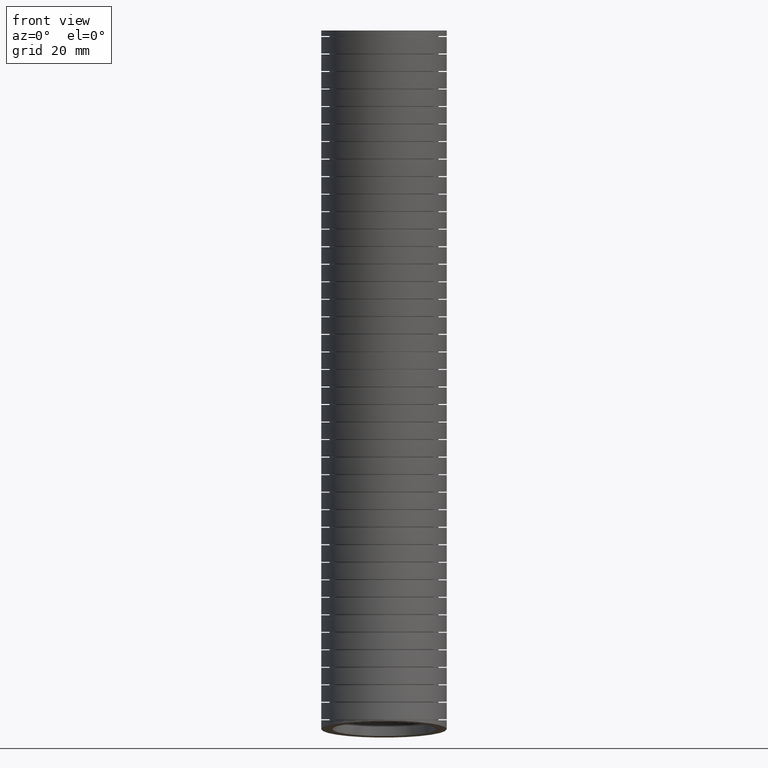
[diagram: clean part render]
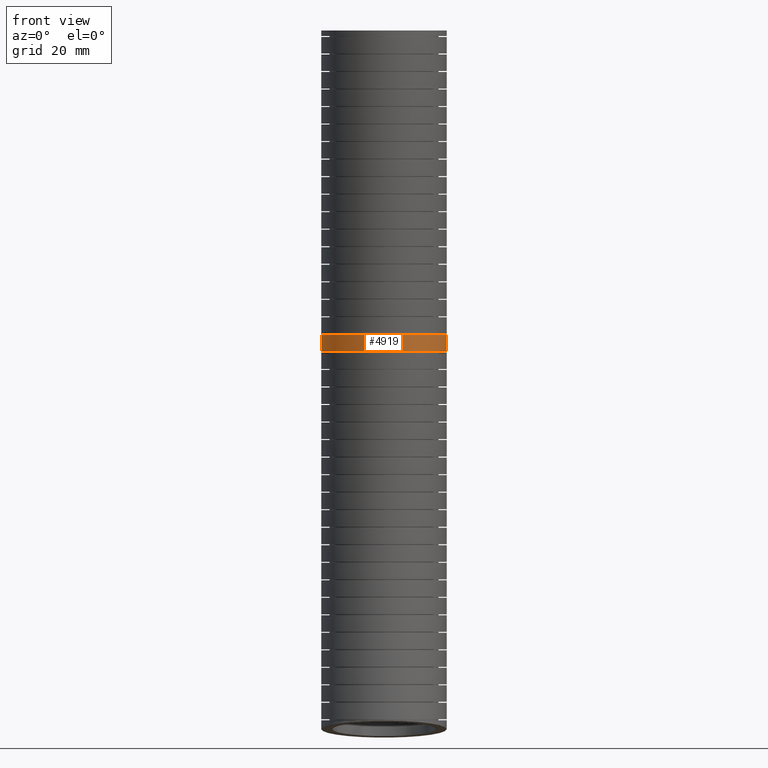
[diagram: same view with one face highlighted and labeled with its STEP entity id]
A machine part, front view. The second image highlights one B-rep face of the part: STEP entity #4919.
In plain terms, the highlighted face is a freeform B-spline surface patch.
Its self-contained STEP definition (entity closure, byte-faithful):
#4882 = VERTEX_POINT ( 'NONE', #9510 ) ;
#4887 = EDGE_CURVE ( 'NONE', #4922, #4882, #9572, .T. ) ;
#4888 = ORIENTED_EDGE ( 'NONE', *, *, #4887, .T. ) ;
#4908 = ORIENTED_EDGE ( 'NONE', *, *, #4910, .T. ) ;
#4910 = EDGE_CURVE ( 'NONE', #4911, #4915, #9700, .T. ) ;
#4911 = VERTEX_POINT ( 'NONE', #9701 ) ;
#4912 = ORIENTED_EDGE ( 'NONE', *, *, #4921, .T. ) ;
#4915 = VERTEX_POINT ( 'NONE', #9774 ) ;
#4916 = EDGE_LOOP ( 'NONE', ( #4908, #4912, #4888, #4967 ) ) ;
#4919 = ADVANCED_FACE ( 'NONE', ( #9772 ), #9816, .T. ) ;
#4921 = EDGE_CURVE ( 'NONE', #4915, #4922, #9814, .T. ) ;
#4922 = VERTEX_POINT ( 'NONE', #9815 ) ;
#4965 = EDGE_CURVE ( 'NONE', #4911, #4882, #10279, .T. ) ;
#4967 = ORIENTED_EDGE ( 'NONE', *, *, #4965, .F. ) ;
#9510 = CARTESIAN_POINT ( 'NONE',  ( 0.6799999999999998300, 0.1191299897984496500, -3.477878285617257000 ) ) ;
#9559 = CARTESIAN_POINT ( 'NONE',  ( -0.4963338145678234400, -0.3459315530059642300, -3.477878285809098600 ) ) ;
#9560 = CARTESIAN_POINT ( 'NONE',  ( -0.5114858365344048300, -0.3292349888419086600, -3.477878285809101300 ) ) ;
#9561 = CARTESIAN_POINT ( 'NONE',  ( -0.5397883289564231500, -0.2947716171642885100, -3.477878285809101700 ) ) ;
#9562 = CARTESIAN_POINT ( 'NONE',  ( -0.5530095349699719600, -0.2769476856164449500, -3.477878285809100400 ) ) ;
#9563 = CARTESIAN_POINT ( 'NONE',  ( -0.5899407589212781700, -0.2217359138415820600, -3.477878285809099100 ) ) ;
#9564 = CARTESIAN_POINT ( 'NONE',  ( -0.6109746632921322400, -0.1825545100900795300, -3.477878285809097700 ) ) ;
#9565 = CARTESIAN_POINT ( 'NONE',  ( -0.6453575859737621400, -0.09966305026945675200, -3.477878285809099100 ) ) ;
#9566 = CARTESIAN_POINT ( 'NONE',  ( -0.6582048764524689500, -0.05720136548537443200, -3.477878285809103500 ) ) ;
#9567 = CARTESIAN_POINT ( 'NONE',  ( -0.6712054320268197000, 0.007957591872620309300, -3.477878285809103500 ) ) ;
#9568 = CARTESIAN_POINT ( 'NONE',  ( -0.6744861733473044300, 0.02992345336393708100, -3.477878285809098600 ) ) ;
#9569 = CARTESIAN_POINT ( 'NONE',  ( -0.6788904760620648700, 0.07435966788919304300, -3.477878285809098600 ) ) ;
#9570 = CARTESIAN_POINT ( 'NONE',  ( -0.6799999999999997200, 0.09686540492076140000, -3.477878285809100000 ) ) ;
#9571 = CARTESIAN_POINT ( 'NONE',  ( -0.6799999999999998300, 0.1191299898037272800, -3.477878285809099100 ) ) ;
#9572 = B_SPLINE_CURVE_WITH_KNOTS ( 'NONE', 3,
 ( #9571, #9570, #9569, #9568, #9567, #9566, #9565, #9564, #9563, #9562, #9561, #9560, #9559, #9641, #9640, #9639, #9638, #9637, #9636, #9635, #9634, #9633, #9632, #9631, #9630, #9629, #9628, #9627, #9626, #9625, #9624, #9623, #9622, #9621, #9620, #9619, #9618, #9617, #9616, #9615, #9614, #9613, #9612, #9611, #9610, #9609, #9608, #9607, #9606, #9605, #9604 ),
 .UNSPECIFIED., .F., .F.,
 ( 4, 2, 2, 2, 2, 2, 2, 2, 2, 2, 2, 2, 1, 2, 2, 2, 2, 2, 2, 2, 2, 2, 2, 2, 2, 4 ),
 ( 0.05456167777848347500, 0.05626680181274124100, 0.05797192584699900600, 0.06138217391551453700, 0.06479242198403006900, 0.06649754601828783400, 0.06820267005254561400, 0.07161291812106114500, 0.07331804215531891000, 0.07502316618957667600, 0.07843341425809222100, 0.08013853829234998700, 0.08184366232660775200, 0.08354878636086551800, 0.08525391039512328400, 0.08866415846363881500, 0.09036928249789659400, 0.09207440653215434600, 0.09548465460066989100, 0.09718977863492765700, 0.09889490266918543600, 0.1023051507377009700, 0.1040102747719587300, 0.1057153988062165000, 0.1074205228404742600, 0.1091256468747320400 ),
 .UNSPECIFIED. ) ;
#9604 = CARTESIAN_POINT ( 'NONE',  ( 0.6799999999999998300, 0.1191299897984496500, -3.477878285617257000 ) ) ;
#9605 = CARTESIAN_POINT ( 'NONE',  ( 0.6799999999999998300, 0.09667545948014488700, -3.477878285617256100 ) ) ;
#9606 = CARTESIAN_POINT ( 'NONE',  ( 0.6788788304336282900, 0.07420682008083424900, -3.477878285809101300 ) ) ;
#9607 = CARTESIAN_POINT ( 'NONE',  ( 0.6744767848095871700, 0.02986425117740585900, -3.477878285809101700 ) ) ;
#9608 = CARTESIAN_POINT ( 'NONE',  ( 0.6711998264914975600, 0.007925658253330256400, -3.477878285809100000 ) ) ;
#9609 = CARTESIAN_POINT ( 'NONE',  ( 0.6625349776089491900, -0.03549499832668374200, -3.477878285809098600 ) ) ;
#9610 = CARTESIAN_POINT ( 'NONE',  ( 0.6571470381138216900, -0.05697705140043340900, -3.477878285809098200 ) ) ;
#9611 = CARTESIAN_POINT ( 'NONE',  ( 0.6442397730812501300, -0.09948020475719802900, -3.477878285809098600 ) ) ;
#9612 = CARTESIAN_POINT ( 'NONE',  ( 0.6366919140477044200, -0.1205693400066130400, -3.477878285809099100 ) ) ;
#9613 = CARTESIAN_POINT ( 'NONE',  ( 0.6109160432241367300, -0.1826660451790148600, -3.477878285809099100 ) ) ;
#9614 = CARTESIAN_POINT ( 'NONE',  ( 0.5899416808394328800, -0.2217370747985903100, -3.477878285809100900 ) ) ;
#9615 = CARTESIAN_POINT ( 'NONE',  ( 0.5529910106662514500, -0.2769741087073891400, -3.477878285809100000 ) ) ;
#9616 = CARTESIAN_POINT ( 'NONE',  ( 0.5397525657062194300, -0.2948207551612183600, -3.477878285809101300 ) ) ;
#9617 = CARTESIAN_POINT ( 'NONE',  ( 0.5113842930908190100, -0.3293530193006848400, -3.477878285809101700 ) ) ;
#9618 = CARTESIAN_POINT ( 'NONE',  ( 0.4962487115867144100, -0.3460203044351883300, -3.477878285809098600 ) ) ;
#9619 = CARTESIAN_POINT ( 'NONE',  ( 0.4490012785333313800, -0.3931725666702227700, -3.477878285809100000 ) ) ;
#9620 = CARTESIAN_POINT ( 'NONE',  ( 0.4147583602260312400, -0.4212319236971989700, -3.477878285809101300 ) ) ;
#9621 = CARTESIAN_POINT ( 'NONE',  ( 0.3592879371714460800, -0.4582711364563419300, -3.477878285809100900 ) ) ;
#9622 = CARTESIAN_POINT ( 'NONE',  ( 0.3400047788441976100, -0.4698230696181547900, -3.477878285809099100 ) ) ;
#9623 = CARTESIAN_POINT ( 'NONE',  ( 0.3005322376470450600, -0.4908843502558856200, -3.477878285809098200 ) ) ;
#9624 = CARTESIAN_POINT ( 'NONE',  ( 0.2804195230948592900, -0.5003680987063545700, -3.477878285809099100 ) ) ;
#9625 = CARTESIAN_POINT ( 'NONE',  ( 0.2189837643920015700, -0.5257668730176872100, -3.477878285809099100 ) ) ;
#9626 = CARTESIAN_POINT ( 'NONE',  ( 0.1765736199935092600, -0.5386586695275050700, -3.477878285809098600 ) ) ;
#9627 = CARTESIAN_POINT ( 'NONE',  ( 0.1107127924810620000, -0.5517513129807368700, -3.477878285809098600 ) ) ;
#9628 = CARTESIAN_POINT ( 'NONE',  ( 0.08849830628670427000, -0.5550320407809694600, -3.477878285809104000 ) ) ;
#9629 = CARTESIAN_POINT ( 'NONE',  ( 0.04425971996192324500, -0.5593683815609815600, -3.477878285809104000 ) ) ;
#9630 = CARTESIAN_POINT ( 'NONE',  ( 4.062277254108542100E-006, -0.5615233088113994500, -3.477878285809095500 ) ) ;
#9631 = CARTESIAN_POINT ( 'NONE',  ( -0.04428532783641572800, -0.5593678368030055000, -3.477878285809100400 ) ) ;
#9632 = CARTESIAN_POINT ( 'NONE',  ( -0.08859186797689507000, -0.5550208990441254400, -3.477878285809101300 ) ) ;
#9633 = CARTESIAN_POINT ( 'NONE',  ( -0.1108760527841262900, -0.5517227160763815700, -3.477878285809101300 ) ) ;
#9634 = CARTESIAN_POINT ( 'NONE',  ( -0.1765871780542960800, -0.5386482281952808000, -3.477878285809100400 ) ) ;
#9635 = CARTESIAN_POINT ( 'NONE',  ( -0.2189729280898020400, -0.5257732560558184800, -3.477878285809099100 ) ) ;
#9636 = CARTESIAN_POINT ( 'NONE',  ( -0.2804623383373964800, -0.5003494456116166500, -3.477878285809098600 ) ) ;
#9637 = CARTESIAN_POINT ( 'NONE',  ( -0.3006081313325404400, -0.4908490446890108600, -3.477878285809099100 ) ) ;
#9638 = CARTESIAN_POINT ( 'NONE',  ( -0.3401746292280576300, -0.4697272217135072300, -3.477878285809098600 ) ) ;
#9639 = CARTESIAN_POINT ( 'NONE',  ( -0.3593571120723541000, -0.4582269793323423000, -3.477878285809100000 ) ) ;
#9640 = CARTESIAN_POINT ( 'NONE',  ( -0.4147493505028767600, -0.4212338666890870200, -3.477878285809100000 ) ) ;
#9641 = CARTESIAN_POINT ( 'NONE',  ( -0.4490058267639624500, -0.3931756462278336300, -3.477878285809098600 ) ) ;
#9688 = CARTESIAN_POINT ( 'NONE',  ( 0.5113418354489541700, -0.3322027865472778100, -3.297900672311556500 ) ) ;
#9689 = CARTESIAN_POINT ( 'NONE',  ( 0.5397921765292567100, -0.2975676535183449100, -3.297900672311556500 ) ) ;
#9690 = CARTESIAN_POINT ( 'NONE',  ( 0.5531403683728208800, -0.2795626397485755400, -3.297900672311556000 ) ) ;
#9691 = CARTESIAN_POINT ( 'NONE',  ( 0.5901703731115571800, -0.2241461193176084400, -3.297900672311556000 ) ) ;
#9692 = CARTESIAN_POINT ( 'NONE',  ( 0.6110689390331069900, -0.1851024707693244000, -3.297900672311554300 ) ) ;
#9693 = CARTESIAN_POINT ( 'NONE',  ( 0.6366831112638188200, -0.1233594936227989900, -3.297900672311553800 ) ) ;
#9694 = CARTESIAN_POINT ( 'NONE',  ( 0.6442856974757661400, -0.1021327396265062200, -3.297900672311556500 ) ) ;
#9695 = CARTESIAN_POINT ( 'NONE',  ( 0.6572387722583247200, -0.05942127569925458700, -3.297900672311555600 ) ) ;
#9696 = CARTESIAN_POINT ( 'NONE',  ( 0.6626254156393768200, -0.03787991386457537100, -3.297900672311553800 ) ) ;
#9697 = CARTESIAN_POINT ( 'NONE',  ( 0.6755886403332017600, 0.02728863193999314000, -3.297900672311553400 ) ) ;
#9698 = CARTESIAN_POINT ( 'NONE',  ( 0.6799999999999999400, 0.07145491391435290800, -3.297900672119741500 ) ) ;
#9699 = CARTESIAN_POINT ( 'NONE',  ( 0.6799999999999998300, 0.1163725351184301800, -3.297900672119741000 ) ) ;
#9700 = B_SPLINE_CURVE_WITH_KNOTS ( 'NONE', 3,
 ( #9699, #9698, #9697, #9696, #9695, #9694, #9693, #9692, #9691, #9690, #9689, #9688, #9760, #9759, #9758, #9757, #9756, #9755, #9754, #9753, #9752, #9751, #9750, #9749, #9748, #9747, #9746, #9745, #9744, #9743, #9742, #9741, #9740, #9739, #9738, #9737, #9736, #9735, #9734, #9733, #9732, #9731, #9730, #9729, #9728, #9727, #9726, #9725, #9724 ),
 .UNSPECIFIED., .F., .F.,
 ( 4, 2, 2, 2, 2, 2, 2, 2, 2, 1, 2, 2, 2, 2, 2, 2, 2, 2, 2, 2, 2, 2, 2, 2, 4 ),
 ( 0.0000000000000000000, 0.003374133109522703900, 0.005061199664284057200, 0.006748266219045408700, 0.01012239932856811400, 0.01180946588332946500, 0.01349653243809081600, 0.01687066554761351700, 0.01855773210237486600, 0.02024479865713621500, 0.02193186521189756700, 0.02361893176665891600, 0.02699306487618161700, 0.02868013143094297000, 0.03036719798570432200, 0.03374133109522702700, 0.03542839764998837600, 0.03711546420474972500, 0.04048959731427243000, 0.04386373042379514100, 0.04555079697855649000, 0.04723786353331783900, 0.05061199664284054400, 0.05229906319760190000, 0.05398612975236324900 ),
 .UNSPECIFIED. ) ;
#9701 = CARTESIAN_POINT ( 'NONE',  ( 0.6799999999999998300, 0.1163725351184301800, -3.297900672119741000 ) ) ;
#9724 = CARTESIAN_POINT ( 'NONE',  ( -0.6799999999999998300, 0.1163725351248981000, -3.297900672311555600 ) ) ;
#9725 = CARTESIAN_POINT ( 'NONE',  ( -0.6800000000000001600, 0.09418791000687050400, -3.297900672311556500 ) ) ;
#9726 = CARTESIAN_POINT ( 'NONE',  ( -0.6789160323348713000, 0.07193440916951036900, -3.297900672311556500 ) ) ;
#9727 = CARTESIAN_POINT ( 'NONE',  ( -0.6745064376305379700, 0.02728497160223228300, -3.297900672311556000 ) ) ;
#9728 = CARTESIAN_POINT ( 'NONE',  ( -0.6712035771968073400, 0.005167860202490914500, -3.297900672311556000 ) ) ;
#9729 = CARTESIAN_POINT ( 'NONE',  ( -0.6581627357977658500, -0.06015975929977373400, -3.297900672311556000 ) ) ;
#9730 = CARTESIAN_POINT ( 'NONE',  ( -0.6453040525709448100, -0.1025408877874991300, -3.297900672311553800 ) ) ;
#9731 = CARTESIAN_POINT ( 'NONE',  ( -0.6196921090964725400, -0.1643350854078943200, -3.297900672311552900 ) ) ;
#9732 = CARTESIAN_POINT ( 'NONE',  ( -0.6100394322991988800, -0.1847163723071332300, -3.297900672311556000 ) ) ;
#9733 = CARTESIAN_POINT ( 'NONE',  ( -0.5889829557453334400, -0.2240317434660017400, -3.297900672311556000 ) ) ;
#9734 = CARTESIAN_POINT ( 'NONE',  ( -0.5775516903131703300, -0.2430562134133104900, -3.297900672311556500 ) ) ;
#9735 = CARTESIAN_POINT ( 'NONE',  ( -0.5406051479457090200, -0.2982694795480880800, -3.297900672311556000 ) ) ;
#9736 = CARTESIAN_POINT ( 'NONE',  ( -0.5124037758974385700, -0.3326758172610729800, -3.297900672311556000 ) ) ;
#9737 = CARTESIAN_POINT ( 'NONE',  ( -0.4489012932291351900, -0.3960965871736521500, -3.297900672311555600 ) ) ;
#9738 = CARTESIAN_POINT ( 'NONE',  ( -0.4145530723839270200, -0.4241824804093975400, -3.297900672311557400 ) ) ;
#9739 = CARTESIAN_POINT ( 'NONE',  ( -0.3592832379881583100, -0.4610810926073266000, -3.297900672311556000 ) ) ;
#9740 = CARTESIAN_POINT ( 'NONE',  ( -0.3402307649698417800, -0.4725024899802593400, -3.297900672311556000 ) ) ;
#9741 = CARTESIAN_POINT ( 'NONE',  ( -0.3008367691126114200, -0.4935462137737987000, -3.297900672311556000 ) ) ;
#9742 = CARTESIAN_POINT ( 'NONE',  ( -0.2804575185370830600, -0.5031689548097861800, -3.297900672311556000 ) ) ;
#9743 = CARTESIAN_POINT ( 'NONE',  ( -0.2187177925110306000, -0.5286885113203690900, -3.297900672311556000 ) ) ;
#9744 = CARTESIAN_POINT ( 'NONE',  ( -0.1763358685347848600, -0.5415187349638074200, -3.297900672311556500 ) ) ;
#9745 = CARTESIAN_POINT ( 'NONE',  ( -0.1109408017366882200, -0.5545274267534614500, -3.297900672311555600 ) ) ;
#9746 = CARTESIAN_POINT ( 'NONE',  ( -0.08873761973093673100, -0.5578254945174433400, -3.297900672311556500 ) ) ;
#9747 = CARTESIAN_POINT ( 'NONE',  ( -0.04416302814830923300, -0.5621999229726288800, -3.297900672311556500 ) ) ;
#9748 = CARTESIAN_POINT ( 'NONE',  ( -0.02193491618354754000, -0.5632731552680484400, -3.297900672311556000 ) ) ;
#9749 = CARTESIAN_POINT ( 'NONE',  ( 0.04457713857589541700, -0.5632501069205716500, -3.297900672311556000 ) ) ;
#9750 = CARTESIAN_POINT ( 'NONE',  ( 0.08869044041191299900, -0.5589419531036452500, -3.297900672311557400 ) ) ;
#9751 = CARTESIAN_POINT ( 'NONE',  ( 0.1545090397189559400, -0.5458664056235448300, -3.297900672311556000 ) ) ;
#9752 = CARTESIAN_POINT ( 'NONE',  ( 0.1763259443776402900, -0.5403959059024374700, -3.297900672311555100 ) ) ;
#9753 = CARTESIAN_POINT ( 'NONE',  ( 0.2188915171326634200, -0.5274754717539137400, -3.297900672311555600 ) ) ;
#9754 = CARTESIAN_POINT ( 'NONE',  ( 0.2606252562870912100, -0.5125331771567767100, -3.297900672311556000 ) ) ;
#9755 = CARTESIAN_POINT ( 'NONE',  ( 0.3007178397571627100, -0.4936018783094736600, -3.297900672311554300 ) ) ;
#9756 = CARTESIAN_POINT ( 'NONE',  ( 0.3399773319105513500, -0.4726456620002094700, -3.297900672311556000 ) ) ;
#9757 = CARTESIAN_POINT ( 'NONE',  ( 0.3592930933027709300, -0.4610827740571288900, -3.297900672311556500 ) ) ;
#9758 = CARTESIAN_POINT ( 'NONE',  ( 0.4150572425247852100, -0.4238292532961873700, -3.297900672311557800 ) ) ;
#9759 = CARTESIAN_POINT ( 'NONE',  ( 0.4493013945084137200, -0.3957008526631143900, -3.297900672311557400 ) ) ;
#9760 = CARTESIAN_POINT ( 'NONE',  ( 0.4963724606157335400, -0.3486845753217303600, -3.297900672311556000 ) ) ;
#9772 = FACE_OUTER_BOUND ( 'NONE', #4916, .T. ) ;
#9774 = CARTESIAN_POINT ( 'NONE',  ( -0.6799999999999998300, 0.1163725351248981000, -3.297900672311555600 ) ) ;
#9814 = B_SPLINE_CURVE_WITH_KNOTS ( 'NONE', 3,
 ( #9876, #9875, #9874, #9873 ),
 .UNSPECIFIED., .F., .F.,
 ( 4, 4 ),
 ( 0.4349300453938413900, 0.4586857485852122200 ),
 .UNSPECIFIED. ) ;
#9815 = CARTESIAN_POINT ( 'NONE',  ( -0.6799999999999998300, 0.1191299898037272800, -3.477878285809099100 ) ) ;
#9816 =( BOUNDED_SURFACE ( )  B_SPLINE_SURFACE ( 3, 3, ( 
 ( #9863, #9862, #9861, #9860, #9858, #9857 ),
 ( #9856, #9855, #9854, #9853, #9852, #9850 ),
 ( #9849, #9848, #9847, #9846, #9845, #9844 ),
 ( #9843, #9842, #9841, #9840, #9839, #9838 ),
 ( #9837, #9836, #9835, #9834, #9833, #9832 ),
 ( #9831, #9830, #9829, #9828, #9827, #9826 ),
 ( #9883, #9882, #9881, #9880, #9879, #9878 ) ),
 .UNSPECIFIED., .F., .F., .F. ) 
 B_SPLINE_SURFACE_WITH_KNOTS ( ( 4, 3, 4 ),
 ( 4, 1, 1, 4 ),
 ( 0.0000000000000000000, 0.5000000000000000000, 1.000000000000000000 ),
 ( 0.0000000000000000000, 0.5599999999999998300, 0.9244357691435686200, 1.000000000000000000 ),
 .UNSPECIFIED. ) 
 GEOMETRIC_REPRESENTATION_ITEM ( )  RATIONAL_B_SPLINE_SURFACE ( (
 ( 1.000000000000000000, 1.000000000000000000, 0.9999999999999998900, 1.000000000000000000, 1.000000000000000000, 1.000000000000000000),
 ( 0.3333333333333333100, 0.3333333333333333100, 0.3333333333333333100, 0.3333333333333333100, 0.3333333333333333100, 0.3333333333333333100),
 ( 0.3333333333333333100, 0.3333333333333333100, 0.3333333333333333100, 0.3333333333333333100, 0.3333333333333333100, 0.3333333333333333100),
 ( 1.000000000000000000, 1.000000000000000000, 0.9999999999999998900, 1.000000000000000000, 1.000000000000000000, 1.000000000000000000),
 ( 0.3333333333333333100, 0.3333333333333333100, 0.3333333333333333100, 0.3333333333333333100, 0.3333333333333333100, 0.3333333333333333100),
 ( 0.3333333333333333100, 0.3333333333333333100, 0.3333333333333333100, 0.3333333333333333100, 0.3333333333333333100, 0.3333333333333333100),
 ( 1.000000000000000000, 1.000000000000000000, 0.9999999999999998900, 1.000000000000000000, 1.000000000000000000, 1.000000000000000000) ) ) 
 REPRESENTATION_ITEM ( '' )  SURFACE ( )  );
#9826 = CARTESIAN_POINT ( 'NONE',  ( 0.6799999999999998300, 1.317559051196987700, -7.753533657777190100 ) ) ;
#9827 = CARTESIAN_POINT ( 'NONE',  ( 0.6799999999999998300, 1.335631108747101300, -7.555709326537000300 ) ) ;
#9828 = CARTESIAN_POINT ( 'NONE',  ( 0.6800000000000000500, 1.440862184772448300, -6.403805776945382000 ) ) ;
#9829 = CARTESIAN_POINT ( 'NONE',  ( 0.6799999999999998300, 1.528843047282568500, -3.785687112797655500 ) ) ;
#9830 = CARTESIAN_POINT ( 'NONE',  ( 0.6800000000000000500, 1.423695653556495700, -1.428141807974481600 ) ) ;
#9831 = CARTESIAN_POINT ( 'NONE',  ( 0.6800000000000000500, 1.360000000000000100, 0.0000000000000000000 ) ) ;
#9832 = CARTESIAN_POINT ( 'NONE',  ( -0.6799999999999997200, 1.317559051196987700, -7.753533657777190100 ) ) ;
#9833 = CARTESIAN_POINT ( 'NONE',  ( -0.6799999999999998300, 1.335631108747101300, -7.555709326537000300 ) ) ;
#9834 = CARTESIAN_POINT ( 'NONE',  ( -0.6799999999999998300, 1.440862184772448300, -6.403805776945382000 ) ) ;
#9835 = CARTESIAN_POINT ( 'NONE',  ( -0.6799999999999993800, 1.528843047282568500, -3.785687112797655500 ) ) ;
#9836 = CARTESIAN_POINT ( 'NONE',  ( -0.6799999999999997200, 1.423695653556495700, -1.428141807974481600 ) ) ;
#9837 = CARTESIAN_POINT ( 'NONE',  ( -0.6799999999999998300, 1.360000000000000100, 0.0000000000000000000 ) ) ;
#9838 = CARTESIAN_POINT ( 'NONE',  ( -0.6799999999999998300, -0.02999999999999994300, -7.570000000000000300 ) ) ;
#9839 = CARTESIAN_POINT ( 'NONE',  ( -0.6799999999999998300, -0.01268304244353365300, -7.380027536167250300 ) ) ;
#9840 = CARTESIAN_POINT ( 'NONE',  ( -0.6799999999999998300, 0.08815119140610096200, -6.273844317744462300 ) ) ;
#9841 = CARTESIAN_POINT ( 'NONE',  ( -0.6799999999999998300, 0.1669887239008315800, -3.753425867331408000 ) ) ;
#9842 = CARTESIAN_POINT ( 'NONE',  ( -0.6799999999999999400, 0.06299611430032946200, -1.415971326882179200 ) ) ;
#9843 = CARTESIAN_POINT ( 'NONE',  ( -0.6799999999999999400, 8.327598234202001900E-017, 0.0000000000000000000 ) ) ;
#9844 = CARTESIAN_POINT ( 'NONE',  ( -0.6800000000000000500, -1.377559051196987500, -7.386466342222807800 ) ) ;
#9845 = CARTESIAN_POINT ( 'NONE',  ( -0.6800000000000000500, -1.360997193634168900, -7.204345745797499300 ) ) ;
#9846 = CARTESIAN_POINT ( 'NONE',  ( -0.6800000000000000500, -1.264559801960247100, -6.143882858543539900 ) ) ;
#9847 = CARTESIAN_POINT ( 'NONE',  ( -0.6799999999999998300, -1.194865599480906100, -3.721164621865159700 ) ) ;
#9848 = CARTESIAN_POINT ( 'NONE',  ( -0.6800000000000000500, -1.297703424955836600, -1.403800845789877400 ) ) ;
#9849 = CARTESIAN_POINT ( 'NONE',  ( -0.6800000000000000500, -1.360000000000000100, 0.0000000000000000000 ) ) ;
#9850 = CARTESIAN_POINT ( 'NONE',  ( 0.6799999999999998300, -1.377559051196987500, -7.386466342222807800 ) ) ;
#9852 = CARTESIAN_POINT ( 'NONE',  ( 0.6799999999999998300, -1.360997193634168900, -7.204345745797499300 ) ) ;
#9853 = CARTESIAN_POINT ( 'NONE',  ( 0.6800000000000000500, -1.264559801960247100, -6.143882858543539900 ) ) ;
#9854 = CARTESIAN_POINT ( 'NONE',  ( 0.6799999999999998300, -1.194865599480906100, -3.721164621865159700 ) ) ;
#9855 = CARTESIAN_POINT ( 'NONE',  ( 0.6800000000000000500, -1.297703424955836600, -1.403800845789877400 ) ) ;
#9856 = CARTESIAN_POINT ( 'NONE',  ( 0.6800000000000000500, -1.360000000000000100, 0.0000000000000000000 ) ) ;
#9857 = CARTESIAN_POINT ( 'NONE',  ( 0.6799999999999998300, -0.03000000000000002700, -7.570000000000000300 ) ) ;
#9858 = CARTESIAN_POINT ( 'NONE',  ( 0.6799999999999998300, -0.01268304244353372900, -7.380027536167250300 ) ) ;
#9860 = CARTESIAN_POINT ( 'NONE',  ( 0.6799999999999998300, 0.08815119140610085100, -6.273844317744462300 ) ) ;
#9861 = CARTESIAN_POINT ( 'NONE',  ( 0.6799999999999998300, 0.1669887239008314700, -3.753425867331408000 ) ) ;
#9862 = CARTESIAN_POINT ( 'NONE',  ( 0.6799999999999999400, 0.06299611430032937800, -1.415971326882179200 ) ) ;
#9863 = CARTESIAN_POINT ( 'NONE',  ( 0.6799999999999999400, 0.0000000000000000000, 0.0000000000000000000 ) ) ;
#9873 = CARTESIAN_POINT ( 'NONE',  ( -0.6799999999999998300, 0.1191299898037272800, -3.477878285809099100 ) ) ;
#9874 = CARTESIAN_POINT ( 'NONE',  ( -0.6799999999999999400, 0.1183048555323646300, -3.417889729080755100 ) ) ;
#9875 = CARTESIAN_POINT ( 'NONE',  ( -0.6799999999999999400, 0.1173840523834280000, -3.357897121312707800 ) ) ;
#9876 = CARTESIAN_POINT ( 'NONE',  ( -0.6799999999999998300, 0.1163725351248981000, -3.297900672311555600 ) ) ;
#9878 = CARTESIAN_POINT ( 'NONE',  ( 0.6799999999999998300, -0.03000000000000002700, -7.570000000000000300 ) ) ;
#9879 = CARTESIAN_POINT ( 'NONE',  ( 0.6799999999999998300, -0.01268304244353372900, -7.380027536167250300 ) ) ;
#9880 = CARTESIAN_POINT ( 'NONE',  ( 0.6799999999999998300, 0.08815119140610085100, -6.273844317744462300 ) ) ;
#9881 = CARTESIAN_POINT ( 'NONE',  ( 0.6799999999999998300, 0.1669887239008314700, -3.753425867331408000 ) ) ;
#9882 = CARTESIAN_POINT ( 'NONE',  ( 0.6799999999999999400, 0.06299611430032937800, -1.415971326882179200 ) ) ;
#9883 = CARTESIAN_POINT ( 'NONE',  ( 0.6799999999999999400, 0.0000000000000000000, 0.0000000000000000000 ) ) ;
#10275 = CARTESIAN_POINT ( 'NONE',  ( 0.6799999999999998300, 0.1191299897984496500, -3.477878285617257000 ) ) ;
#10276 = CARTESIAN_POINT ( 'NONE',  ( 0.6799999999999999400, 0.1183048555295213900, -3.417889728888879700 ) ) ;
#10277 = CARTESIAN_POINT ( 'NONE',  ( 0.6799999999999999400, 0.1173840523803862500, -3.357897121120835500 ) ) ;
#10278 = CARTESIAN_POINT ( 'NONE',  ( 0.6799999999999998300, 0.1163725351184301800, -3.297900672119741000 ) ) ;
#10279 = B_SPLINE_CURVE_WITH_KNOTS ( 'NONE', 3,
 ( #10278, #10277, #10276, #10275 ),
 .UNSPECIFIED., .F., .F.,
 ( 4, 4 ),
 ( 0.4349300453685177600, 0.4586857485598838700 ),
 .UNSPECIFIED. ) ;